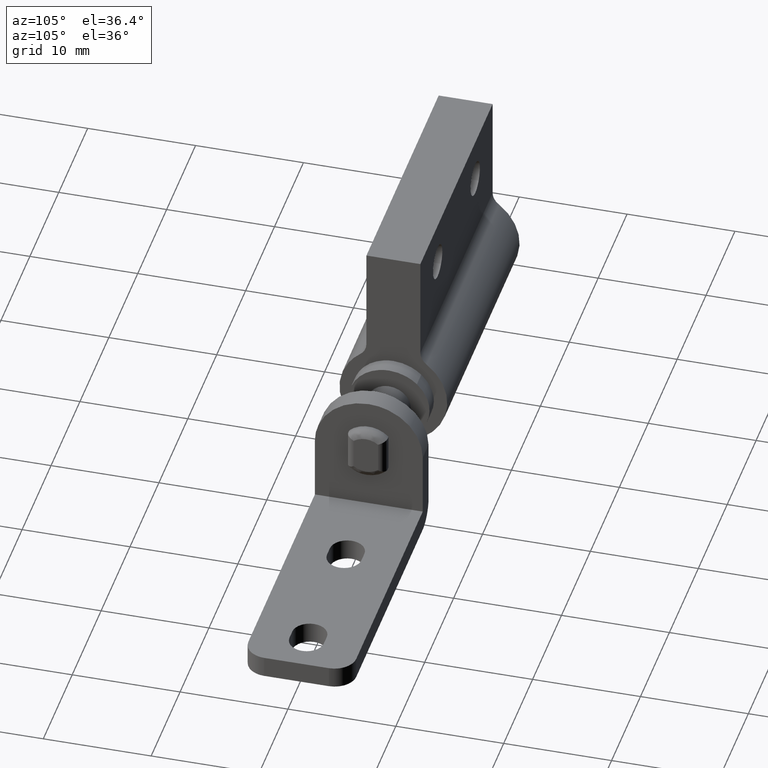
[diagram: clean part render]
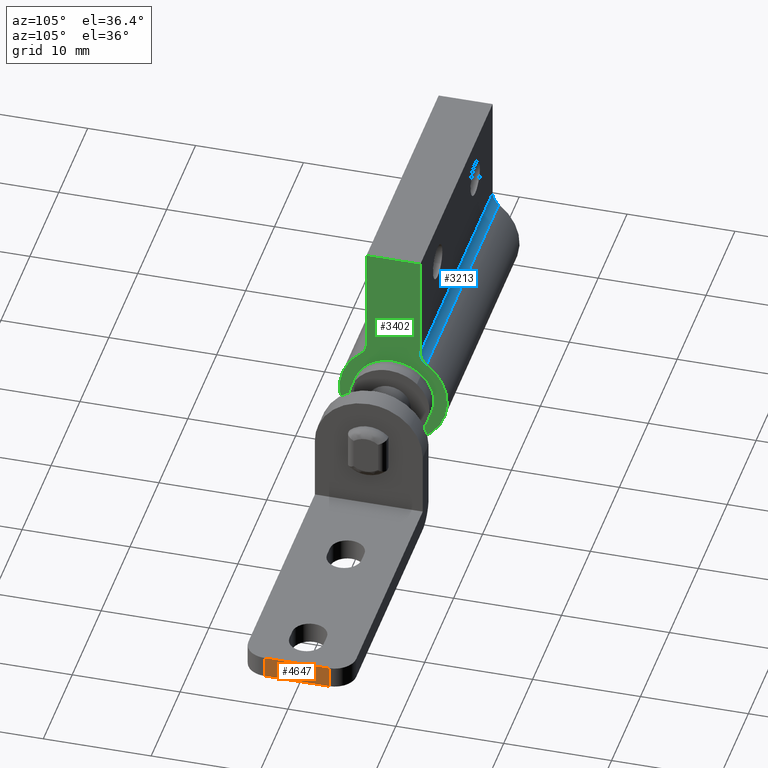
[diagram: same view with three faces highlighted in distinct colors, each labeled with its STEP entity id]
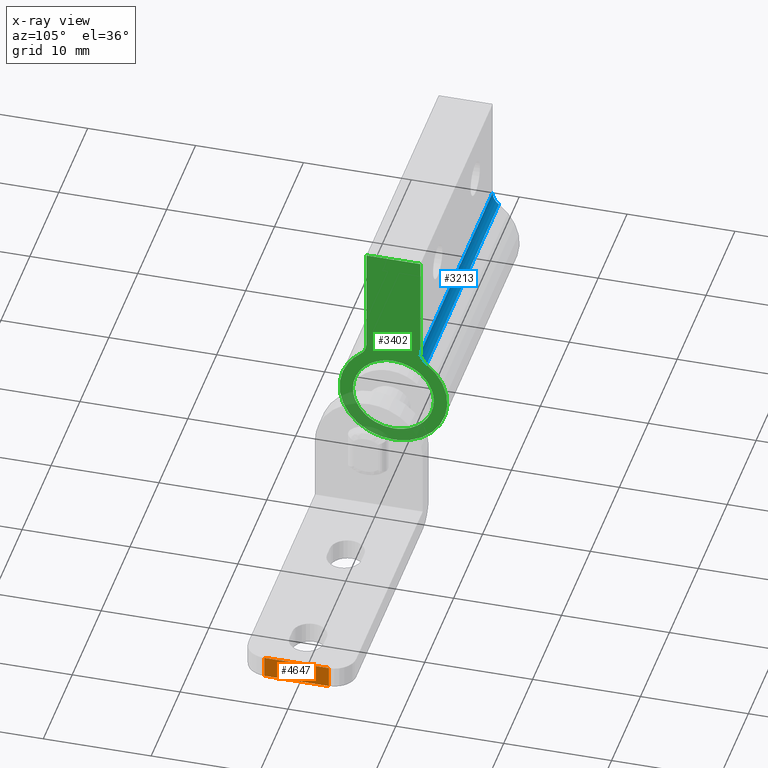
[diagram: x-ray of the same camera — body ghosted, the three highlighted faces saturated]
A machine part, auxiliary view with three faces highlighted in distinct colors.
The next image is the same camera in x-ray (body ghosted, the three faces saturated) — at least one of them is partly hidden behind the body in this view.
Their STEP definitions:

[orange] entity #4647 — the highlighted face is a freeform B-spline surface patch.
#4172=CARTESIAN_POINT('',(27.0,-3.0,-5.999999999999890));
#4173=VERTEX_POINT('',#4172);
#4187=CARTESIAN_POINT('',(27.0,3.0,-5.999999999999890));
#4188=VERTEX_POINT('',#4187);
#4189=CARTESIAN_POINT('',(27.0,3.0,-5.999999999999890));
#4190=CARTESIAN_POINT('',(27.0,-3.0,-5.999999999999890));
#4191=QUASI_UNIFORM_CURVE('',1,(#4189,#4190),.UNSPECIFIED.,.F.,.U.);
#4192=EDGE_CURVE('',#4188,#4173,#4191,.T.);
#4597=CARTESIAN_POINT('',(27.0,-3.0,-7.999999999999900));
#4598=VERTEX_POINT('',#4597);
#4612=CARTESIAN_POINT('',(27.0,-3.0,-5.999999999999890));
#4613=CARTESIAN_POINT('',(27.0,-3.0,-7.999999999999900));
#4614=QUASI_UNIFORM_CURVE('',1,(#4612,#4613),.UNSPECIFIED.,.F.,.U.);
#4615=EDGE_CURVE('',#4173,#4598,#4614,.T.);
#4626=CARTESIAN_POINT('',(27.0,-3.299699988370836,-5.900100003876278));
#4627=CARTESIAN_POINT('',(27.0,-3.299699988370836,-8.099900049767694));
#4628=CARTESIAN_POINT('',(27.0,3.299700149303377,-5.900100003876278));
#4629=CARTESIAN_POINT('',(27.0,3.299700149303377,-8.099900049767694));
#4630=B_SPLINE_SURFACE_WITH_KNOTS('',1,1,((#4626,#4628),(#4627,#4629)),.UNSPECIFIED.,.F.,.F.,.U.,(2,2),(2,2),(0.0,2.199800045891416),(0.0,6.599400137674213),.UNSPECIFIED.);
#4631=CARTESIAN_POINT('',(27.0,3.0,-7.999999999999900));
#4632=VERTEX_POINT('',#4631);
#4633=CARTESIAN_POINT('',(27.0,3.0,-7.999999999999900));
#4634=CARTESIAN_POINT('',(27.0,-3.0,-7.999999999999900));
#4635=QUASI_UNIFORM_CURVE('',1,(#4633,#4634),.UNSPECIFIED.,.F.,.U.);
#4636=EDGE_CURVE('',#4632,#4598,#4635,.T.);
#4637=ORIENTED_EDGE('',*,*,#4636,.F.);
#4638=CARTESIAN_POINT('',(27.0,3.0,-5.999999999999890));
#4639=CARTESIAN_POINT('',(27.0,3.0,-7.999999999999900));
#4640=QUASI_UNIFORM_CURVE('',1,(#4638,#4639),.UNSPECIFIED.,.F.,.U.);
#4641=EDGE_CURVE('',#4188,#4632,#4640,.T.);
#4642=ORIENTED_EDGE('',*,*,#4641,.F.);
#4643=ORIENTED_EDGE('',*,*,#4192,.T.);
#4644=ORIENTED_EDGE('',*,*,#4615,.T.);
#4645=EDGE_LOOP('',(#4637,#4642,#4643,#4644));
#4646=FACE_OUTER_BOUND('',#4645,.T.);
#4647=ADVANCED_FACE('',(#4646),#4630,.T.);

[blue] entity #3213 — the highlighted face is a freeform B-spline surface patch.
#2974=CARTESIAN_POINT('',(-31.500000000000000,2.500000000000000,5.123475382979930));
#2975=VERTEX_POINT('',#2974);
#2981=CARTESIAN_POINT('',(-31.500000000000000,3.076923076923105,3.941134909984594));
#2982=VERTEX_POINT('',#2981);
#2983=CARTESIAN_POINT('',(-31.500000000000000,3.076923076923105,3.941134909984594));
#2984=CARTESIAN_POINT('',(-31.500000000000082,2.937038217222785,4.050163731742879));
#2985=CARTESIAN_POINT('',(-31.499999999999918,2.773747949521255,4.232730067216692));
#2986=CARTESIAN_POINT('',(-31.500000000000082,2.606683840491844,4.546413884836690));
#2987=CARTESIAN_POINT('',(-31.500000000000011,2.521200490025057,4.811376489293823));
#2988=CARTESIAN_POINT('',(-31.500000000000000,2.499988776559054,5.024171129697658));
#2989=CARTESIAN_POINT('',(-31.500000000000000,2.500000000000000,5.123475382979930));
#2990=B_SPLINE_CURVE_WITH_KNOTS('',3,(#2983,#2984,#2985,#2986,#2987,#2988,#2989),.UNSPECIFIED.,.F.,.U.,(4,1,1,1,4),(0.000000027739513,0.531990477623119,0.723501572053705,1.063981511980445,1.361895173858148),.UNSPECIFIED.);
#2991=EDGE_CURVE('',#2982,#2975,#2990,.T.);
#3124=CARTESIAN_POINT('',(-6.499999999999840,3.076923076923105,3.941134909984594));
#3125=VERTEX_POINT('',#3124);
#3126=CARTESIAN_POINT('',(-6.499999999999840,3.076923076923105,3.941134909984594));
#3127=CARTESIAN_POINT('',(-31.500000000000000,3.076923076923105,3.941134909984594));
#3128=QUASI_UNIFORM_CURVE('',1,(#3126,#3127),.UNSPECIFIED.,.F.,.U.);
#3129=EDGE_CURVE('',#3125,#2982,#3128,.T.);
#3178=CARTESIAN_POINT('',(-5.874999999999836,2.501404775374415,5.188378023368372));
#3179=CARTESIAN_POINT('',(-32.140625000000007,2.501404775374415,5.188378023368372));
#3180=CARTESIAN_POINT('',(-5.874999999999836,2.466159880640086,4.374577065114857));
#3181=CARTESIAN_POINT('',(-32.140625000000007,2.466159880640086,4.374577065114857));
#3182=CARTESIAN_POINT('',(-5.874999999999834,3.129538457451596,3.901879417472408));
#3183=CARTESIAN_POINT('',(-32.140625000000014,3.129538457451596,3.901879417472408));
#3191=(BOUNDED_SURFACE()B_SPLINE_SURFACE(1,2,((#3178,#3180,#3182),(#3179,#3181,#3183)),.UNSPECIFIED.,.F.,.F.,.U.)B_SPLINE_SURFACE_WITH_KNOTS((2,2),(3,3),(0.0,26.265625000000171),(0.0,0.964849893129431),.UNSPECIFIED.)GEOMETRIC_REPRESENTATION_ITEM()RATIONAL_B_SPLINE_SURFACE(((1.0,0.874912707082773,0.991206336571619),(1.0,0.874912707082773,0.991206336571619)))REPRESENTATION_ITEM('')SURFACE());
#3192=ORIENTED_EDGE('',*,*,#2991,.T.);
#3193=CARTESIAN_POINT('',(-6.499999999999840,2.500000000000000,5.123475382979930));
#3194=VERTEX_POINT('',#3193);
#3195=CARTESIAN_POINT('',(-6.499999999999840,2.500000000000000,5.123475382979930));
#3196=CARTESIAN_POINT('',(-31.500000000000000,2.500000000000000,5.123475382979930));
#3197=QUASI_UNIFORM_CURVE('',1,(#3195,#3196),.UNSPECIFIED.,.F.,.U.);
#3198=EDGE_CURVE('',#3194,#2975,#3197,.T.);
#3199=ORIENTED_EDGE('',*,*,#3198,.F.);
#3200=CARTESIAN_POINT('',(-6.499999999999840,3.076923076923105,3.941134909984594));
#3201=CARTESIAN_POINT('',(-6.499999999999848,2.937038171604605,4.050163699868376));
#3202=CARTESIAN_POINT('',(-6.499999999999826,2.773747930011556,4.232730053399417));
#3203=CARTESIAN_POINT('',(-6.499999999999850,2.606683847712632,4.546413890092215));
#3204=CARTESIAN_POINT('',(-6.499999999999838,2.521200494465244,4.811376492417865));
#3205=CARTESIAN_POINT('',(-6.499999999999844,2.499988774873093,5.024171128490235));
#3206=CARTESIAN_POINT('',(-6.499999999999840,2.500000000000000,5.123475382979930));
#3207=B_SPLINE_CURVE_WITH_KNOTS('',3,(#3200,#3201,#3202,#3203,#3204,#3205,#3206),.UNSPECIFIED.,.F.,.U.,(4,1,1,1,4),(0.000000027739513,0.531990477623119,0.723501572053705,1.063981511980445,1.361895173858148),.UNSPECIFIED.);
#3208=EDGE_CURVE('',#3125,#3194,#3207,.T.);
#3209=ORIENTED_EDGE('',*,*,#3208,.F.);
#3210=ORIENTED_EDGE('',*,*,#3129,.T.);
#3211=EDGE_LOOP('',(#3192,#3199,#3209,#3210));
#3212=FACE_OUTER_BOUND('',#3211,.T.);
#3213=ADVANCED_FACE('',(#3212),#3191,.F.);

[green] entity #3402 — the highlighted face is a freeform B-spline surface patch.
#3073=CARTESIAN_POINT('',(-6.499999999999840,-3.076923076923055,3.941134909984560));
#3074=VERTEX_POINT('',#3073);
#3080=CARTESIAN_POINT('',(-6.499999999999840,-2.500000000000000,5.123475382979930));
#3081=VERTEX_POINT('',#3080);
#3082=CARTESIAN_POINT('',(-6.499999999999840,-2.500000000000000,5.123475382979930));
#3083=CARTESIAN_POINT('',(-6.499999999999838,-2.499962617168366,4.995795104855134));
#3084=CARTESIAN_POINT('',(-6.499999999999846,-2.530979030331680,4.754646994013958));
#3085=CARTESIAN_POINT('',(-6.499999999999838,-2.649375705731415,4.448344703554180));
#3086=CARTESIAN_POINT('',(-6.499999999999837,-2.825390200619840,4.172196981262714));
#3087=CARTESIAN_POINT('',(-6.499999999999847,-2.976260858453137,4.019680070061467));
#3088=CARTESIAN_POINT('',(-6.499999999999840,-3.076923076923055,3.941134909984560));
#3089=B_SPLINE_CURVE_WITH_KNOTS('',3,(#3082,#3083,#3084,#3085,#3086,#3087,#3088),.UNSPECIFIED.,.F.,.U.,(4,1,1,1,4),(0.000000027739316,0.383033473698840,0.723501572053673,0.978861278549630,1.361895173858139),.UNSPECIFIED.);
#3090=EDGE_CURVE('',#3081,#3074,#3089,.T.);
#3124=CARTESIAN_POINT('',(-6.499999999999840,3.076923076923105,3.941134909984594));
#3125=VERTEX_POINT('',#3124);
#3131=CARTESIAN_POINT('',(-6.499999999999840,-0.000000525353391,-4.999999999999887));
#3132=VERTEX_POINT('',#3131);
#3133=CARTESIAN_POINT('',(-6.499999999999840,3.076923076923105,3.941134909984594));
#3134=CARTESIAN_POINT('',(-6.499999999999842,3.267724642288208,3.792185295453172));
#3135=CARTESIAN_POINT('',(-6.499999999999848,3.663637987959813,3.433933975916530));
#3136=CARTESIAN_POINT('',(-6.499999999999838,4.149851066888955,2.827174753068459));
#3137=CARTESIAN_POINT('',(-6.499999999999856,4.612785447814776,2.010821715827131));
#3138=CARTESIAN_POINT('',(-6.499999999999827,4.895814457915130,1.162749427216747));
#3139=CARTESIAN_POINT('',(-6.499999999999864,5.028495826357171,0.135719201058360));
#3140=CARTESIAN_POINT('',(-6.499999999999804,4.968781014844682,-0.853520296064265));
#3141=CARTESIAN_POINT('',(-6.499999999999911,4.710384621149250,-1.741757687422783));
#3142=CARTESIAN_POINT('',(-6.499999999999811,4.357237766037152,-2.486435312153012));
#3143=CARTESIAN_POINT('',(-6.499999999999866,3.875601942548303,-3.216659178256953));
#3144=CARTESIAN_POINT('',(-6.499999999999812,3.158707536225950,-3.925082100137732));
#3145=CARTESIAN_POINT('',(-6.499999999999877,2.351817438109535,-4.438093768603650));
#3146=CARTESIAN_POINT('',(-6.499999999999851,1.577463655332934,-4.767167222721786));
#3147=CARTESIAN_POINT('',(-6.499999999999576,0.806862003059196,-4.957420200163299));
#3148=CARTESIAN_POINT('',(-6.500000000000447,0.258190136617454,-5.000012429775844));
#3149=CARTESIAN_POINT('',(-6.499999999999840,-0.000000525353391,-4.999999999999887));
#3150=B_SPLINE_CURVE_WITH_KNOTS('',3,(#3133,#3134,#3135,#3136,#3137,#3138,#3139,#3140,#3141,#3142,#3143,#3144,#3145,#3146,#3147,#3148,#3149),.UNSPECIFIED.,.F.,.U.,(4,1,1,1,1,1,1,1,1,1,1,1,1,1,4),(0.000000108460867,0.726171934066665,1.597601772377173,2.323799473587668,3.534126062381528,4.260319166001422,5.422248086078912,6.487269428776664,7.019832884796387,7.891249839417884,9.101581824913293,10.021429437734049,10.747616598018030,11.619068589921330,12.393643086250030),.UNSPECIFIED.);
#3151=EDGE_CURVE('',#3125,#3132,#3150,.T.);
#3153=CARTESIAN_POINT('',(-6.499999999999840,-0.000000525353391,-4.999999999999887));
#3154=CARTESIAN_POINT('',(-6.499999999999873,-0.322744046022656,-5.000038289098297));
#3155=CARTESIAN_POINT('',(-6.499999999999794,-0.855259215082669,-4.948251461535061));
#3156=CARTESIAN_POINT('',(-6.499999999999867,-1.652909649912512,-4.738980208711034));
#3157=CARTESIAN_POINT('',(-6.499999999999845,-2.396815422167164,-4.418627862222546));
#3158=CARTESIAN_POINT('',(-6.499999999999816,-3.072009308933600,-3.970630764883762));
#3159=CARTESIAN_POINT('',(-6.499999999999893,-3.680602575746734,-3.414140592181279));
#3160=CARTESIAN_POINT('',(-6.499999999999860,-4.126277475985395,-2.857527388633627));
#3161=CARTESIAN_POINT('',(-6.499999999999808,-4.515209298259551,-2.186144109315211));
#3162=CARTESIAN_POINT('',(-6.499999999999915,-4.837330961419334,-1.390705334225886));
#3163=CARTESIAN_POINT('',(-6.499999999999984,-5.002768552831256,-0.512606152265593));
#3164=CARTESIAN_POINT('',(-6.499999999999595,-5.004477445862344,0.296140648620404));
#3165=CARTESIAN_POINT('',(-6.500000000000148,-4.918773807092841,0.985920500617322));
#3166=CARTESIAN_POINT('',(-6.500000000000020,-4.694872961766635,1.814401607541019));
#3167=CARTESIAN_POINT('',(-6.499999999999107,-4.267160691913026,2.672246743030242));
#3168=CARTESIAN_POINT('',(-6.500000000001259,-3.686699325239249,3.411033687238514));
#3169=CARTESIAN_POINT('',(-6.499999999998257,-3.280445410597994,3.782259857391073));
#3170=CARTESIAN_POINT('',(-6.499999999999840,-3.076923076923055,3.941134909984560));
#3171=B_SPLINE_CURVE_WITH_KNOTS('',3,(#3153,#3154,#3155,#3156,#3157,#3158,#3159,#3160,#3161,#3162,#3163,#3164,#3165,#3166,#3167,#3168,#3169,#3170),.UNSPECIFIED.,.F.,.U.,(4,1,1,1,1,1,1,1,1,1,1,1,1,1,1,4),(0.000000108443784,0.968226049056948,1.597601636925150,2.469038986856639,3.388887690439640,4.018262595769766,4.938115520538655,5.519051694146135,6.342040520244144,7.503954534205816,8.181728050849824,8.762686454191073,9.585711025268390,10.747615686838410,11.619067604864870,12.393642035530879),.UNSPECIFIED.);
#3172=EDGE_CURVE('',#3132,#3074,#3171,.T.);
#3193=CARTESIAN_POINT('',(-6.499999999999840,2.500000000000000,5.123475382979930));
#3194=VERTEX_POINT('',#3193);
#3200=CARTESIAN_POINT('',(-6.499999999999840,3.076923076923105,3.941134909984594));
#3201=CARTESIAN_POINT('',(-6.499999999999848,2.937038171604605,4.050163699868376));
#3202=CARTESIAN_POINT('',(-6.499999999999826,2.773747930011556,4.232730053399417));
#3203=CARTESIAN_POINT('',(-6.499999999999850,2.606683847712632,4.546413890092215));
#3204=CARTESIAN_POINT('',(-6.499999999999838,2.521200494465244,4.811376492417865));
#3205=CARTESIAN_POINT('',(-6.499999999999844,2.499988774873093,5.024171128490235));
#3206=CARTESIAN_POINT('',(-6.499999999999840,2.500000000000000,5.123475382979930));
#3207=B_SPLINE_CURVE_WITH_KNOTS('',3,(#3200,#3201,#3202,#3203,#3204,#3205,#3206),.UNSPECIFIED.,.F.,.U.,(4,1,1,1,4),(0.000000027739513,0.531990477623119,0.723501572053705,1.063981511980445,1.361895173858148),.UNSPECIFIED.);
#3208=EDGE_CURVE('',#3125,#3194,#3207,.T.);
#3220=CARTESIAN_POINT('',(-6.499999999999840,-2.499999999999970,15.0));
#3221=VERTEX_POINT('',#3220);
#3227=CARTESIAN_POINT('',(-6.499999999999840,2.500000000000000,15.0));
#3228=VERTEX_POINT('',#3227);
#3229=CARTESIAN_POINT('',(-6.499999999999840,-2.499999999999970,15.0));
#3230=CARTESIAN_POINT('',(-6.499999999999840,2.500000000000000,15.0));
#3231=QUASI_UNIFORM_CURVE('',1,(#3229,#3230),.UNSPECIFIED.,.F.,.U.);
#3232=EDGE_CURVE('',#3221,#3228,#3231,.T.);
#3249=CARTESIAN_POINT('',(-6.499999999999840,2.500000000000000,15.0));
#3250=CARTESIAN_POINT('',(-6.499999999999840,2.500000000000000,5.123475382979930));
#3251=QUASI_UNIFORM_CURVE('',1,(#3249,#3250),.UNSPECIFIED.,.F.,.U.);
#3252=EDGE_CURVE('',#3228,#3194,#3251,.T.);
#3281=CARTESIAN_POINT('',(-6.499999999999840,-2.500000000000000,5.123475382979930));
#3282=CARTESIAN_POINT('',(-6.499999999999840,-2.499999999999970,15.0));
#3283=QUASI_UNIFORM_CURVE('',1,(#3281,#3282),.UNSPECIFIED.,.F.,.U.);
#3284=EDGE_CURVE('',#3081,#3221,#3283,.T.);
#3306=CARTESIAN_POINT('',(-6.499999999999890,5.499483644377082,15.998999961236111));
#3307=CARTESIAN_POINT('',(-6.499999999999890,-5.499510340436320,15.998999961236120));
#3308=CARTESIAN_POINT('',(-6.499999999999890,5.499483644377082,-5.999000497677804));
#3309=CARTESIAN_POINT('',(-6.499999999999890,-5.499510340436320,-5.999000497677803));
#3310=B_SPLINE_SURFACE_WITH_KNOTS('',1,1,((#3306,#3308),(#3307,#3309)),.UNSPECIFIED.,.F.,.F.,.U.,(2,2),(2,2),(0.0,10.998993984813399),(0.0,21.998000458913921),.UNSPECIFIED.);
#3311=ORIENTED_EDGE('',*,*,#3284,.F.);
#3312=ORIENTED_EDGE('',*,*,#3090,.T.);
#3313=ORIENTED_EDGE('',*,*,#3172,.F.);
#3314=ORIENTED_EDGE('',*,*,#3151,.F.);
#3315=ORIENTED_EDGE('',*,*,#3208,.T.);
#3316=ORIENTED_EDGE('',*,*,#3252,.F.);
#3317=ORIENTED_EDGE('',*,*,#3232,.F.);
#3318=EDGE_LOOP('',(#3311,#3312,#3313,#3314,#3315,#3316,#3317));
#3319=FACE_OUTER_BOUND('',#3318,.T.);
#3320=CARTESIAN_POINT('',(-6.499999999999840,3.749999999999957,-0.000000568514977));
#3321=VERTEX_POINT('',#3320);
#3322=CARTESIAN_POINT('',(-6.499999999999840,0.0,-3.749999999999914));
#3323=VERTEX_POINT('',#3322);
#3324=CARTESIAN_POINT('',(-6.499999999999840,3.749999999999957,-0.000000568514977));
#3325=CARTESIAN_POINT('',(-6.499999999999844,3.750133810271557,-0.352833814029698));
#3326=CARTESIAN_POINT('',(-6.499999999999830,3.673651555179891,-0.889643283211884));
#3327=CARTESIAN_POINT('',(-6.499999999999845,3.411003731675665,-1.596107343767413));
#3328=CARTESIAN_POINT('',(-6.499999999999840,3.122622678739781,-2.105162605347376));
#3329=CARTESIAN_POINT('',(-6.499999999999857,2.670948443733620,-2.669645361933268));
#3330=CARTESIAN_POINT('',(-6.499999999999785,2.123741993950914,-3.124362043160275));
#3331=CARTESIAN_POINT('',(-6.499999999999934,1.510974738833825,-3.446972113602262));
#3332=CARTESIAN_POINT('',(-6.499999999999703,0.843633266859497,-3.681175867105312));
#3333=CARTESIAN_POINT('',(-6.500000000000047,0.337489446105924,-3.750128400336898));
#3334=CARTESIAN_POINT('',(-6.499999999999840,0.0,-3.749999999999914));
#3335=B_SPLINE_CURVE_WITH_KNOTS('',3,(#3324,#3325,#3326,#3327,#3328,#3329,#3330,#3331,#3332,#3333,#3334),.UNSPECIFIED.,.F.,.U.,(4,1,1,1,1,1,1,1,4),(0.000000055981697,1.058452069563055,1.610691164971621,2.254978962834167,2.807221172964125,3.773605614375755,4.371871969954194,4.878097054064707,5.890522865357173),.UNSPECIFIED.);
#3336=EDGE_CURVE('',#3321,#3323,#3335,.T.);
#3337=ORIENTED_EDGE('',*,*,#3336,.T.);
#3338=CARTESIAN_POINT('',(-6.499999999999839,-2.581329593029330,-2.720153758088999));
#3339=VERTEX_POINT('',#3338);
#3340=CARTESIAN_POINT('',(-6.499999999999840,0.0,-3.749999999999914));
#3341=CARTESIAN_POINT('',(-6.499999999999854,-0.207599461027955,-3.750015192152725));
#3342=CARTESIAN_POINT('',(-6.499999999999837,-0.637624647207480,-3.714205438322992));
#3343=CARTESIAN_POINT('',(-6.499999999999831,-1.185030875452645,-3.571480295886843));
#3344=CARTESIAN_POINT('',(-6.499999999999855,-1.869679265052322,-3.284149880870344));
#3345=CARTESIAN_POINT('',(-6.499999999999835,-2.301790614628882,-2.985723422289489));
#3346=CARTESIAN_POINT('',(-6.499999999999839,-2.581329593029330,-2.720153758088999));
#3347=B_SPLINE_CURVE_WITH_KNOTS('',3,(#3340,#3341,#3342,#3343,#3344,#3345,#3346),.UNSPECIFIED.,.F.,.U.,(4,1,1,1,4),(0.000000014900345,0.622799551859364,1.290090721002920,1.690450174967520,2.847085025479093),.UNSPECIFIED.);
#3348=EDGE_CURVE('',#3323,#3339,#3347,.T.);
#3349=ORIENTED_EDGE('',*,*,#3348,.T.);
#3350=CARTESIAN_POINT('',(-6.499999999999839,-3.749999999999957,0.000000568515130));
#3351=VERTEX_POINT('',#3350);
#3352=CARTESIAN_POINT('',(-6.499999999999839,-2.581329593029330,-2.720153758088999));
#3353=CARTESIAN_POINT('',(-6.499999999999846,-2.788341361166061,-2.523790558814908));
#3354=CARTESIAN_POINT('',(-6.499999999999834,-3.064923626117196,-2.193553047142533));
#3355=CARTESIAN_POINT('',(-6.499999999999849,-3.391898962817411,-1.630671683683543));
#3356=CARTESIAN_POINT('',(-6.499999999999818,-3.663775190115854,-0.950991660343352));
#3357=CARTESIAN_POINT('',(-6.499999999999843,-3.750150924681887,-0.364595011985999));
#3358=CARTESIAN_POINT('',(-6.499999999999839,-3.749999999999957,0.000000568515130));
#3359=B_SPLINE_CURVE_WITH_KNOTS('',3,(#3352,#3353,#3354,#3355,#3356,#3357,#3358),.UNSPECIFIED.,.F.,.U.,(4,1,1,1,4),(0.000000015253238,0.855967279194694,1.283952635067869,1.949702011180039,3.043438740495220),.UNSPECIFIED.);
#3360=EDGE_CURVE('',#3339,#3351,#3359,.T.);
#3361=ORIENTED_EDGE('',*,*,#3360,.T.);
#3362=CARTESIAN_POINT('',(-6.499999999999840,0.0,3.750000000000085));
#3363=VERTEX_POINT('',#3362);
#3364=CARTESIAN_POINT('',(-6.499999999999839,-3.749999999999957,0.000000568515130));
#3365=CARTESIAN_POINT('',(-6.499999999999834,-3.750040555255858,0.260775782886766));
#3366=CARTESIAN_POINT('',(-6.499999999999858,-3.701799608313553,0.720955665747302));
#3367=CARTESIAN_POINT('',(-6.499999999999818,-3.531090856567862,1.296321025501011));
#3368=CARTESIAN_POINT('',(-6.499999999999838,-3.266045118988442,1.884644690929521));
#3369=CARTESIAN_POINT('',(-6.499999999999857,-2.863845444261269,2.470895417515734));
#3370=CARTESIAN_POINT('',(-6.499999999999832,-2.306947052393275,2.981801199857497));
#3371=CARTESIAN_POINT('',(-6.499999999999838,-1.722163893865818,3.352102719740402));
#3372=CARTESIAN_POINT('',(-6.499999999999842,-0.981670629463352,3.658890408764965));
#3373=CARTESIAN_POINT('',(-6.499999999999845,-0.368172973681049,3.750158252335314));
#3374=CARTESIAN_POINT('',(-6.499999999999840,0.0,3.750000000000085));
#3375=B_SPLINE_CURVE_WITH_KNOTS('',3,(#3364,#3365,#3366,#3367,#3368,#3369,#3370,#3371,#3372,#3373,#3374),.UNSPECIFIED.,.F.,.U.,(4,1,1,1,1,1,1,1,4),(0.000000055980265,0.782323351065256,1.380591250867375,1.794771016218054,2.715171321195118,3.497491491855028,4.049732781599357,4.786051555512214,5.890522865357191),.UNSPECIFIED.);
#3376=EDGE_CURVE('',#3351,#3363,#3375,.T.);
#3377=ORIENTED_EDGE('',*,*,#3376,.T.);
#3378=CARTESIAN_POINT('',(-6.499999999999840,2.581329593029327,2.720153758089167));
#3379=VERTEX_POINT('',#3378);
#3380=CARTESIAN_POINT('',(-6.499999999999840,0.0,3.750000000000085));
#3381=CARTESIAN_POINT('',(-6.499999999999848,0.207598998735484,3.750013066575509));
#3382=CARTESIAN_POINT('',(-6.499999999999841,0.637623391281542,3.714204372523860));
#3383=CARTESIAN_POINT('',(-6.499999999999830,1.285884852610314,3.545213772158408));
#3384=CARTESIAN_POINT('',(-6.499999999999911,1.960054337301082,3.228694709471097));
#3385=CARTESIAN_POINT('',(-6.499999999999826,2.376996891437079,2.914137758445062));
#3386=CARTESIAN_POINT('',(-6.499999999999840,2.581329593029327,2.720153758089167));
#3387=B_SPLINE_CURVE_WITH_KNOTS('',3,(#3380,#3381,#3382,#3383,#3384,#3385,#3386),.UNSPECIFIED.,.F.,.U.,(4,1,1,1,4),(0.000000014899974,0.622799551859101,1.290090721002762,2.001854671892919,2.847085025479090),.UNSPECIFIED.);
#3388=EDGE_CURVE('',#3363,#3379,#3387,.T.);
#3389=ORIENTED_EDGE('',*,*,#3388,.T.);
#3390=CARTESIAN_POINT('',(-6.499999999999840,2.581329593029327,2.720153758089167));
#3391=CARTESIAN_POINT('',(-6.499999999999831,2.799844615757644,2.512887525263586));
#3392=CARTESIAN_POINT('',(-6.499999999999869,3.135581826966920,2.106825913951897));
#3393=CARTESIAN_POINT('',(-6.499999999999829,3.504356634387375,1.401750192165080));
#3394=CARTESIAN_POINT('',(-6.499999999999896,3.706283861526036,0.713305218643119));
#3395=CARTESIAN_POINT('',(-6.499999999999781,3.750012593823239,0.221914772868272));
#3396=CARTESIAN_POINT('',(-6.499999999999840,3.749999999999957,-0.000000568514977));
#3397=B_SPLINE_CURVE_WITH_KNOTS('',3,(#3390,#3391,#3392,#3393,#3394,#3395,#3396),.UNSPECIFIED.,.F.,.U.,(4,1,1,1,4),(0.000000015253010,0.903522468228109,1.569265145677367,2.377686933070603,3.043438740495239),.UNSPECIFIED.);
#3398=EDGE_CURVE('',#3379,#3321,#3397,.T.);
#3399=ORIENTED_EDGE('',*,*,#3398,.T.);
#3400=EDGE_LOOP('',(#3337,#3349,#3361,#3377,#3389,#3399));
#3401=FACE_BOUND('',#3400,.T.);
#3402=ADVANCED_FACE('',(#3319,#3401),#3310,.T.);